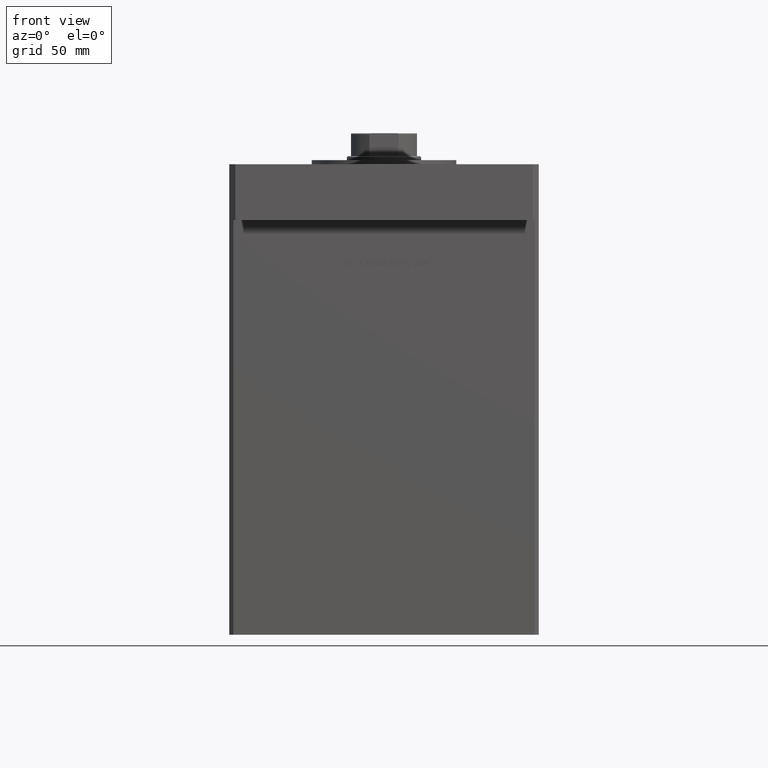
[diagram: clean part render]
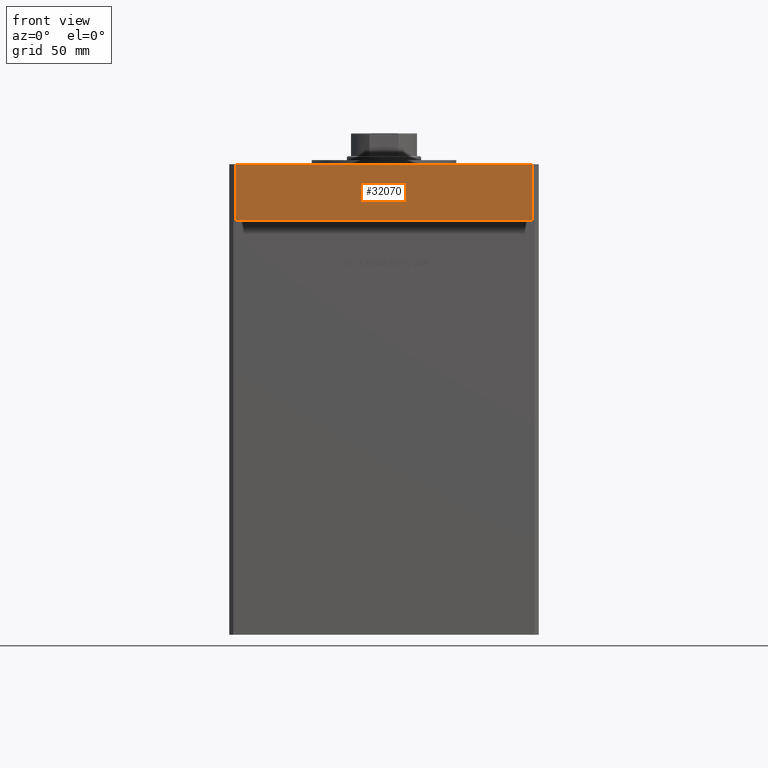
[diagram: same view with one face highlighted and labeled with its STEP entity id]
A machine part, front view. The second image highlights one B-rep face of the part: STEP entity #32070.
In plain terms, the highlighted planar face has unit normal (-0, 1, 0).
Its self-contained STEP definition (entity closure, byte-faithful):
#240 = EDGE_CURVE ( 'NONE', #24634, #52441, #15518, .T. ) ;
#455 = CARTESIAN_POINT ( 'NONE',  ( -71.99999999999998579, -105.0000000000000142, 27.00000000000000000 ) ) ;
#1320 = CARTESIAN_POINT ( 'NONE',  ( -71.99999999999998579, -105.0000000000000142, 0.000000000000000000 ) ) ;
#1576 = CARTESIAN_POINT ( 'NONE',  ( 72.00000000000001421, -104.9999999999999005, 0.000000000000000000 ) ) ;
#6661 = VECTOR ( 'NONE', #52933, 1000.000000000000000 ) ;
#7288 = ORIENTED_EDGE ( 'NONE', *, *, #240, .F. ) ;
#9671 = ORIENTED_EDGE ( 'NONE', *, *, #38881, .F. ) ;
#12266 = CARTESIAN_POINT ( 'NONE',  ( -71.99999999999998579, -105.0000000000000142, 27.00000000000000000 ) ) ;
#13409 = CARTESIAN_POINT ( 'NONE',  ( -71.99999999999998579, -105.0000000000000142, 0.000000000000000000 ) ) ;
#14781 = EDGE_CURVE ( 'NONE', #32501, #43750, #29493, .T. ) ;
#15518 = LINE ( 'NONE', #23310, #6661 ) ;
#16972 = ORIENTED_EDGE ( 'NONE', *, *, #14781, .T. ) ;
#23310 = CARTESIAN_POINT ( 'NONE',  ( 72.00000000000001421, -104.9999999999999005, 27.00000000000000000 ) ) ;
#24392 = ORIENTED_EDGE ( 'NONE', *, *, #36383, .T. ) ;
#24634 = VERTEX_POINT ( 'NONE', #29344 ) ;
#24640 = DIRECTION ( 'NONE',  ( -1.000000000000000000, -7.709882115452476194E-16, 0.000000000000000000 ) ) ;
#28670 = DIRECTION ( 'NONE',  ( -7.709882115452476194E-16, 1.000000000000000000, 0.000000000000000000 ) ) ;
#29344 = CARTESIAN_POINT ( 'NONE',  ( 72.00000000000001421, -104.9999999999999005, 27.00000000000000000 ) ) ;
#29493 = LINE ( 'NONE', #455, #43942 ) ;
#32070 = ADVANCED_FACE ( 'NONE', ( #32713 ), #49154, .F. ) ;
#32501 = VERTEX_POINT ( 'NONE', #47694 ) ;
#32713 = FACE_OUTER_BOUND ( 'NONE', #44372, .T. ) ;
#33849 = VECTOR ( 'NONE', #40835, 1000.000000000000000 ) ;
#34855 = AXIS2_PLACEMENT_3D ( 'NONE', #12266, #28670, #24640 ) ;
#36383 = EDGE_CURVE ( 'NONE', #43750, #52441, #42490, .T. ) ;
#37325 = LINE ( 'NONE', #48938, #33849 ) ;
#38881 = EDGE_CURVE ( 'NONE', #32501, #24634, #37325, .T. ) ;
#40835 = DIRECTION ( 'NONE',  ( 1.000000000000000000, 7.709882115452476194E-16, 0.000000000000000000 ) ) ;
#41361 = DIRECTION ( 'NONE',  ( -0.000000000000000000, -0.000000000000000000, -1.000000000000000000 ) ) ;
#42490 = LINE ( 'NONE', #1320, #47046 ) ;
#43280 = DIRECTION ( 'NONE',  ( 1.000000000000000000, 7.709882115452476194E-16, 0.000000000000000000 ) ) ;
#43750 = VERTEX_POINT ( 'NONE', #13409 ) ;
#43942 = VECTOR ( 'NONE', #41361, 1000.000000000000000 ) ;
#44372 = EDGE_LOOP ( 'NONE', ( #24392, #7288, #9671, #16972 ) ) ;
#47046 = VECTOR ( 'NONE', #43280, 1000.000000000000000 ) ;
#47694 = CARTESIAN_POINT ( 'NONE',  ( -71.99999999999998579, -105.0000000000000142, 27.00000000000000000 ) ) ;
#48938 = CARTESIAN_POINT ( 'NONE',  ( -71.99999999999998579, -105.0000000000000142, 27.00000000000000000 ) ) ;
#49154 = PLANE ( 'NONE',  #34855 ) ;
#52441 = VERTEX_POINT ( 'NONE', #1576 ) ;
#52933 = DIRECTION ( 'NONE',  ( -0.000000000000000000, -0.000000000000000000, -1.000000000000000000 ) ) ;